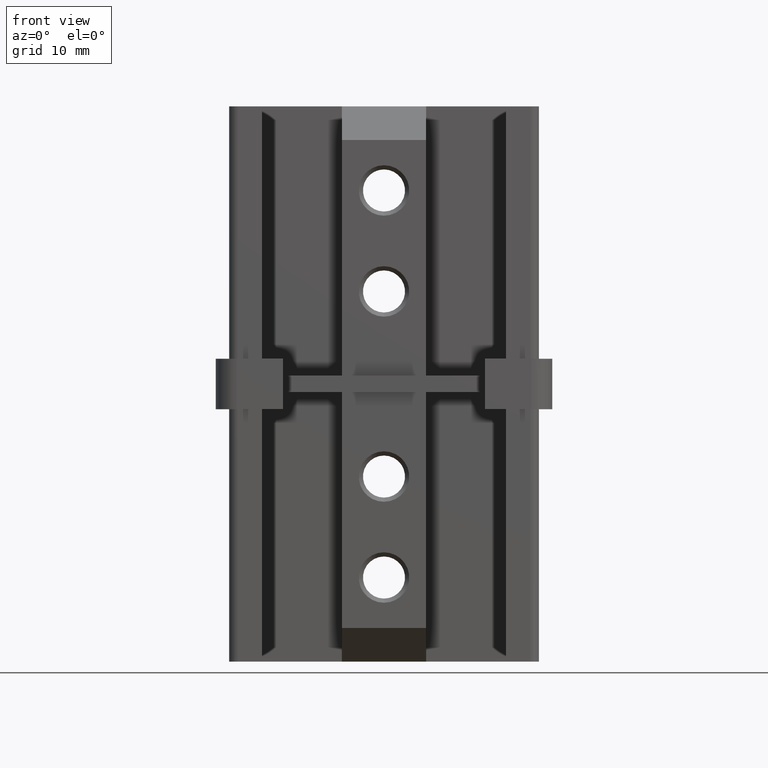
[diagram: clean part render]
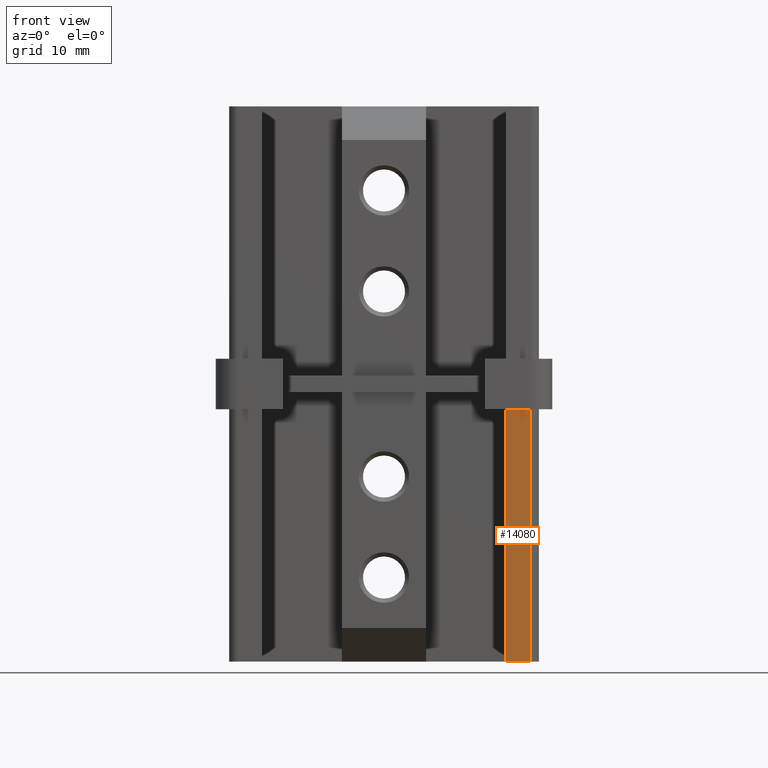
[diagram: same view with one face highlighted and labeled with its STEP entity id]
A machine part, front view. The second image highlights one B-rep face of the part: STEP entity #14080.
In plain terms, the highlighted planar face has unit normal (-0, -1, 0).
Its self-contained STEP definition (entity closure, byte-faithful):
#221 = DIRECTION ( 'NONE',  ( -0.000000000000000000, -0.000000000000000000, 1.000000000000000000 ) ) ;
#304 = ORIENTED_EDGE ( 'NONE', *, *, #5468, .F. ) ;
#358 = EDGE_CURVE ( 'NONE', #5980, #1082, #5257, .T. ) ;
#592 = CARTESIAN_POINT ( 'NONE',  ( 17.39999999999998792, -18.40000000000000568, -33.00000000000000000 ) ) ;
#1082 = VERTEX_POINT ( 'NONE', #592 ) ;
#1247 = CARTESIAN_POINT ( 'NONE',  ( 14.50000000000000178, -18.39999999999999503, -33.00000000000000000 ) ) ;
#1828 = CARTESIAN_POINT ( 'NONE',  ( 18.39999999999999147, -18.40000000000000924, -33.00000000000000000 ) ) ;
#2804 = EDGE_CURVE ( 'NONE', #1082, #5058, #9686, .T. ) ;
#3001 = DIRECTION ( 'NONE',  ( 1.000000000000000000, -3.558407130208844512E-15, 0.000000000000000000 ) ) ;
#3144 = LINE ( 'NONE', #1247, #5470 ) ;
#3270 = VECTOR ( 'NONE', #3001, 1000.000000000000000 ) ;
#3816 = CARTESIAN_POINT ( 'NONE',  ( 18.39999999999999147, -18.40000000000000924, -3.000000000000000000 ) ) ;
#4060 = EDGE_CURVE ( 'NONE', #5059, #5058, #14278, .T. ) ;
#4326 = VECTOR ( 'NONE', #6636, 1000.000000000000000 ) ;
#4452 = EDGE_LOOP ( 'NONE', ( #10484, #7772, #12735, #304 ) ) ;
#5058 = VERTEX_POINT ( 'NONE', #11483 ) ;
#5059 = VERTEX_POINT ( 'NONE', #5709 ) ;
#5257 = LINE ( 'NONE', #1828, #3270 ) ;
#5468 = EDGE_CURVE ( 'NONE', #5980, #5059, #3144, .T. ) ;
#5470 = VECTOR ( 'NONE', #221, 1000.000000000000000 ) ;
#5709 = CARTESIAN_POINT ( 'NONE',  ( 14.50000000000000178, -18.39999999999999503, -3.000000000000000000 ) ) ;
#5980 = VERTEX_POINT ( 'NONE', #8940 ) ;
#6214 = DIRECTION ( 'NONE',  ( -3.558407130208844512E-15, -1.000000000000000000, 0.000000000000000000 ) ) ;
#6636 = DIRECTION ( 'NONE',  ( 0.000000000000000000, 0.000000000000000000, 1.000000000000000000 ) ) ;
#7182 = CARTESIAN_POINT ( 'NONE',  ( 18.39999999999999147, -18.40000000000000924, -33.00000000000000000 ) ) ;
#7772 = ORIENTED_EDGE ( 'NONE', *, *, #2804, .T. ) ;
#8940 = CARTESIAN_POINT ( 'NONE',  ( 14.50000000000000178, -18.39999999999999503, -33.00000000000000000 ) ) ;
#9495 = DIRECTION ( 'NONE',  ( 1.000000000000000000, -3.558407130208844512E-15, 0.000000000000000000 ) ) ;
#9686 = LINE ( 'NONE', #13356, #4326 ) ;
#10484 = ORIENTED_EDGE ( 'NONE', *, *, #358, .T. ) ;
#10610 = AXIS2_PLACEMENT_3D ( 'NONE', #7182, #6214, #12765 ) ;
#11483 = CARTESIAN_POINT ( 'NONE',  ( 17.39999999999998792, -18.40000000000000568, -3.000000000000000000 ) ) ;
#11784 = PLANE ( 'NONE',  #10610 ) ;
#12735 = ORIENTED_EDGE ( 'NONE', *, *, #4060, .F. ) ;
#12765 = DIRECTION ( 'NONE',  ( 1.000000000000000000, -3.558407130208844512E-15, 0.000000000000000000 ) ) ;
#13100 = FACE_OUTER_BOUND ( 'NONE', #4452, .T. ) ;
#13356 = CARTESIAN_POINT ( 'NONE',  ( 17.39999999999998792, -18.40000000000000568, -33.00000000000000000 ) ) ;
#14080 = ADVANCED_FACE ( 'NONE', ( #13100 ), #11784, .T. ) ;
#14119 = VECTOR ( 'NONE', #9495, 1000.000000000000000 ) ;
#14278 = LINE ( 'NONE', #3816, #14119 ) ;